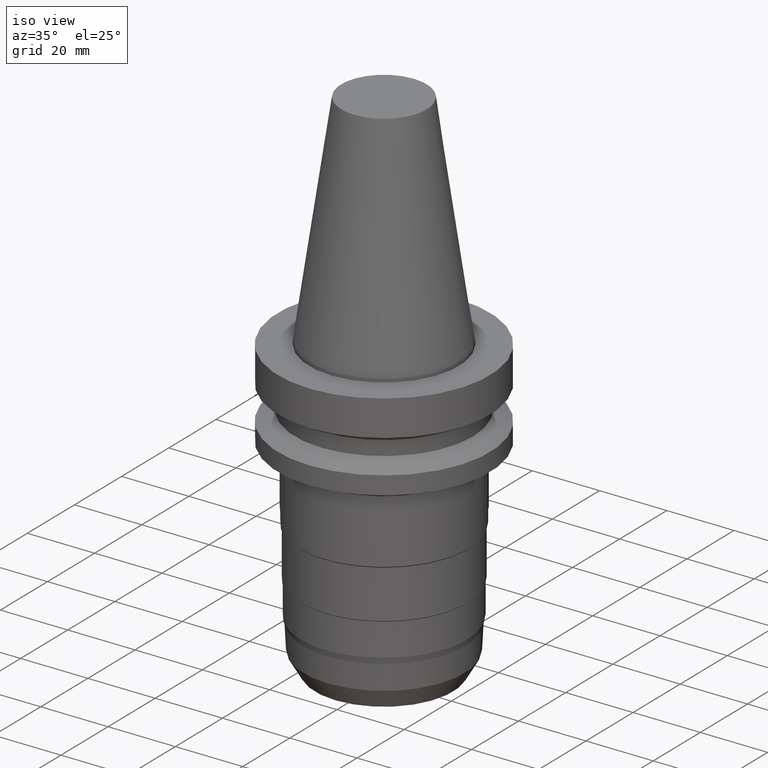
[diagram: clean part render]
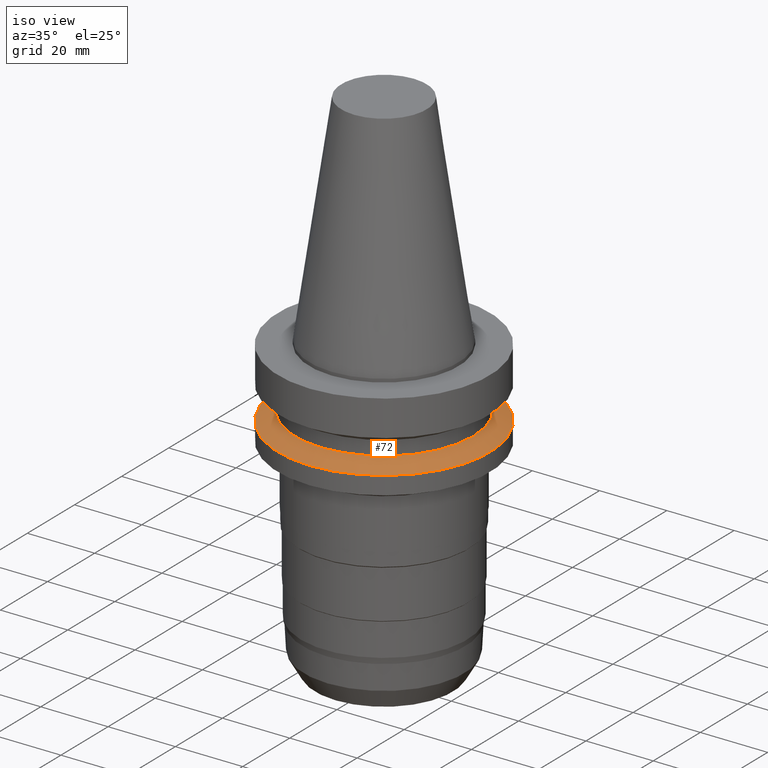
[diagram: same view with one face highlighted and labeled with its STEP entity id]
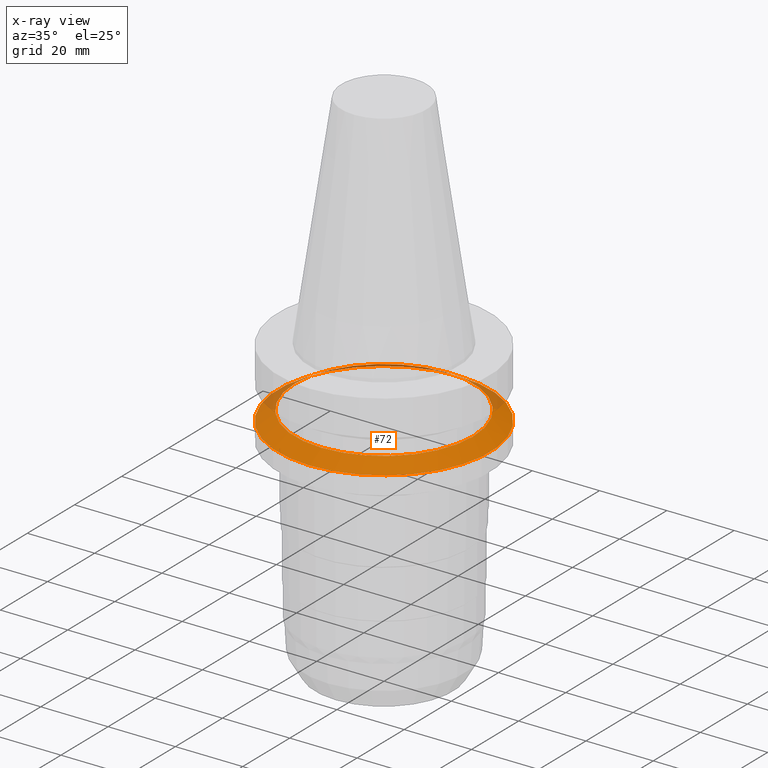
[diagram: x-ray of the same camera — body ghosted, the highlighted face saturated]
A machine part, iso view. The second image highlights one B-rep face of the part: STEP entity #72.
The next image is the same camera in x-ray: the body ghosted, the highlighted face saturated — about 11% of this face is hidden behind the body in this view.
In plain terms, the highlighted conical surface has half-angle 60 deg.
Its self-contained STEP definition (entity closure, byte-faithful):
#72=ADVANCED_FACE('Unnamed[1]',(#200,#201),#202,.T.);
#77=EDGE_CURVE('Unnamed[1]',#209,#209,#210,.T.);
#154=EDGE_CURVE('Unnamed[1]',#332,#332,#333,.T.);
#200=FACE_BOUND('',#382,.T.);
#201=FACE_BOUND('',#383,.T.);
#202=CONICAL_SURFACE('',#384,29.0000000000004,1.04719755119651);
#209=VERTEX_POINT('',#393);
#210=CIRCLE('',#394,26.5);
#332=VERTEX_POINT('',#546);
#333=CIRCLE('',#547,31.5000000000007);
#382=EDGE_LOOP('',(#598));
#383=EDGE_LOOP('',(#599));
#384=AXIS2_PLACEMENT_3D('',#600,#601,#602);
#393=CARTESIAN_POINT('',(1.1479681728942E-015,26.5,-18.7477430013855));
#394=AXIS2_PLACEMENT_3D('',#609,#610,#611);
#546=CARTESIAN_POINT('',(1.32473071268174E-015,31.5000000000007,-21.6344943473346));
#547=AXIS2_PLACEMENT_3D('',#749,#750,#751);
#598=ORIENTED_EDGE('',*,*,#154,.F.);
#599=ORIENTED_EDGE('',*,*,#77,.T.);
#600=CARTESIAN_POINT('',(1.23634944278797E-015,2.47269888557594E-015,-20.1911186743601));
#601=DIRECTION('',(6.12323399573676E-017,1.2246467991471E-016,-1.0));
#602=DIRECTION('',(-1.23259516440782E-032,1.0,1.2246467991471E-016));
#609=CARTESIAN_POINT('',(1.1479681728942E-015,2.29593634578839E-015,-18.7477430013855));
#610=DIRECTION('',(6.12323399573677E-017,1.22464679914764E-016,-1.0));
#611=DIRECTION('',(-1.23259516440783E-032,1.0,1.22464679914764E-016));
#749=CARTESIAN_POINT('',(1.32473071268174E-015,2.64946142536349E-015,-21.6344943473346));
#750=DIRECTION('',(6.12323399573677E-017,1.22464679914767E-016,-1.0));
#751=DIRECTION('',(-1.2325951644078E-032,1.0,1.22464679914767E-016));